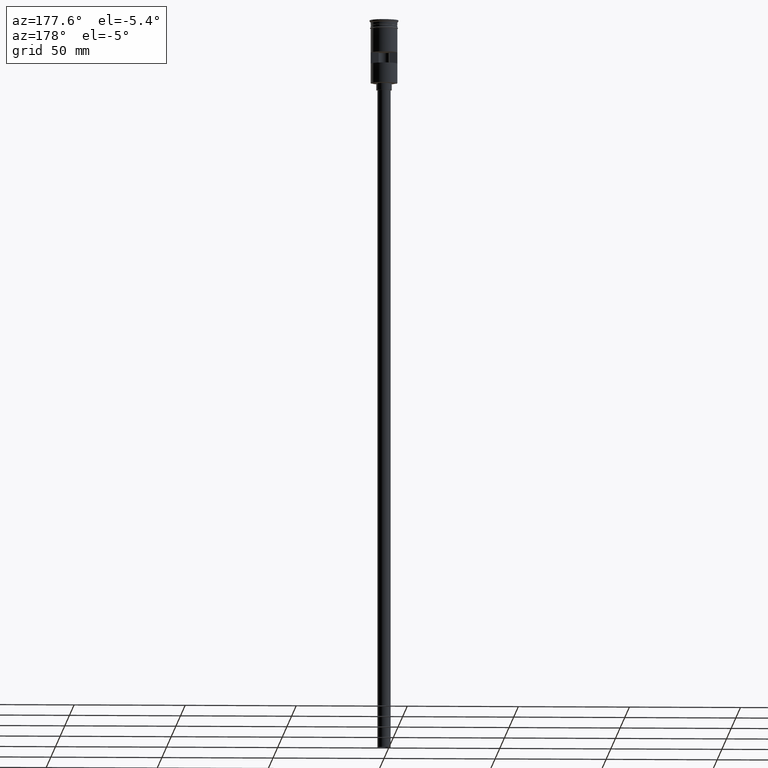
[diagram: clean part render]
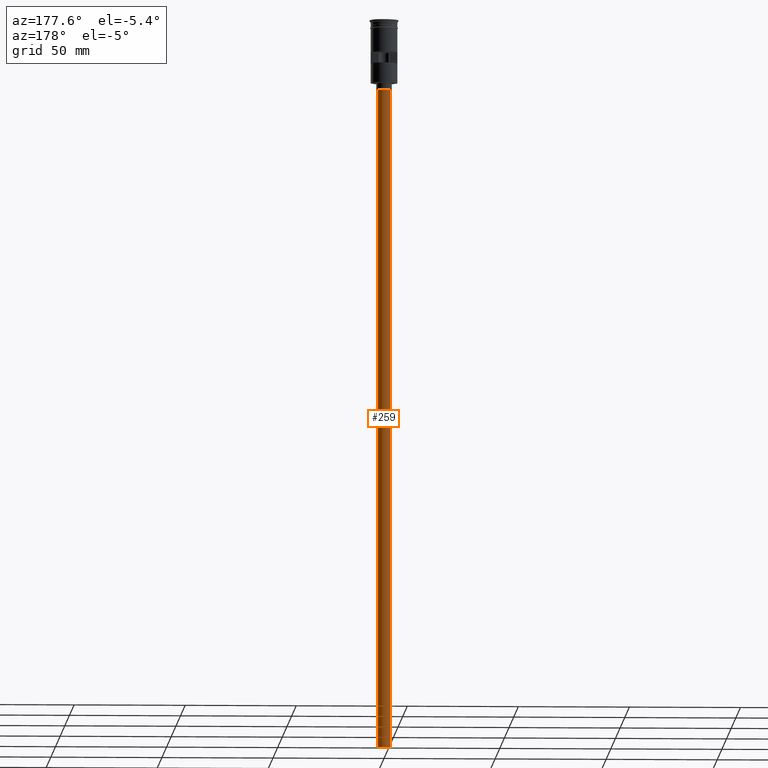
[diagram: same view with one face highlighted and labeled with its STEP entity id]
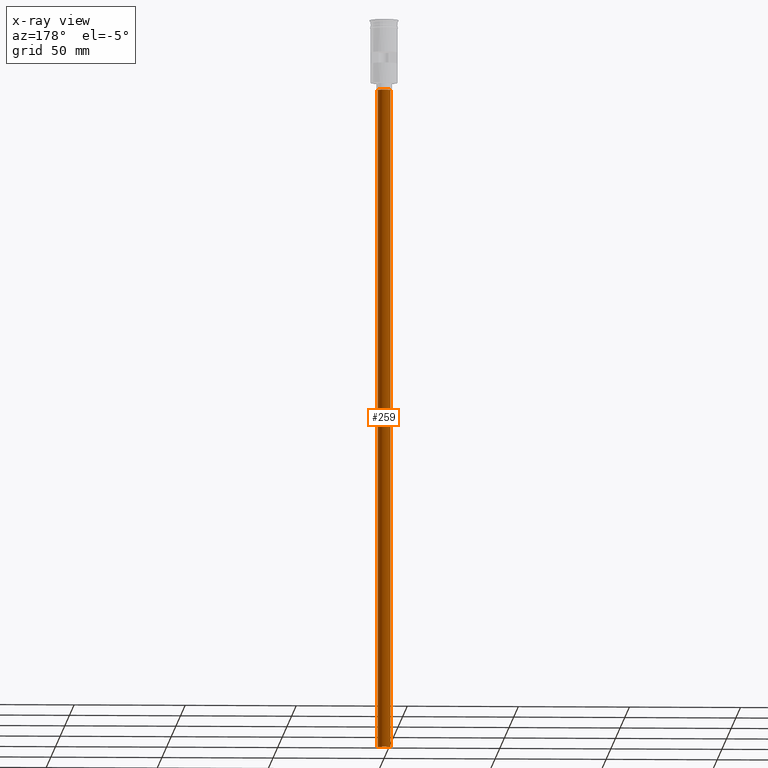
[diagram: x-ray of the same camera — body ghosted, the highlighted face saturated]
A machine part, auxiliary view. The second image highlights one B-rep face of the part: STEP entity #259.
The next image is the same camera in x-ray: the body ghosted, the highlighted face saturated — about 0% of this face is hidden behind the body in this view.
In plain terms, the highlighted cylindrical surface (edge-blend (fillet) strip) has radius 3 mm, axis along (-0, -0, 1).
Its self-contained STEP definition (entity closure, byte-faithful):
#22 = DIRECTION ( 'NONE',  ( 1.000000000000000000, 0.000000000000000000, 0.000000000000000000 ) ) ;
#27 = LINE ( 'NONE', #396, #632 ) ;
#63 = CARTESIAN_POINT ( 'NONE',  ( 0.000000000000000000, 0.000000000000000000, -328.5000000000000000 ) ) ;
#170 = CARTESIAN_POINT ( 'NONE',  ( 0.000000000000000000, 0.000000000000000000, -328.5000000000000000 ) ) ;
#190 = VERTEX_POINT ( 'NONE', #743 ) ;
#191 = DIRECTION ( 'NONE',  ( 0.000000000000000000, 0.000000000000000000, -1.000000000000000000 ) ) ;
#218 = VERTEX_POINT ( 'NONE', #860 ) ;
#259 = ADVANCED_FACE ( 'NONE', ( #277 ), #304, .T. ) ;
#277 = FACE_OUTER_BOUND ( 'NONE', #1169, .T. ) ;
#304 = CYLINDRICAL_SURFACE ( 'NONE', #1219, 3.000000000000000444 ) ;
#367 = AXIS2_PLACEMENT_3D ( 'NONE', #1266, #1130, #418 ) ;
#380 = EDGE_CURVE ( 'NONE', #190, #218, #1432, .T. ) ;
#396 = CARTESIAN_POINT ( 'NONE',  ( -3.000000000000000444, 3.673940397442060361E-16, -328.5000000000000000 ) ) ;
#418 = DIRECTION ( 'NONE',  ( -1.000000000000000000, 0.000000000000000000, 0.000000000000000000 ) ) ;
#442 = EDGE_CURVE ( 'NONE', #659, #1314, #511, .T. ) ;
#511 = CIRCLE ( 'NONE', #692, 3.000000000000000444 ) ;
#601 = ORIENTED_EDGE ( 'NONE', *, *, #968, .T. ) ;
#632 = VECTOR ( 'NONE', #1253, 1000.000000000000000 ) ;
#659 = VERTEX_POINT ( 'NONE', #1033 ) ;
#692 = AXIS2_PLACEMENT_3D ( 'NONE', #63, #191, #783 ) ;
#743 = CARTESIAN_POINT ( 'NONE',  ( -3.000000000000000444, 3.673940397442060361E-16, -31.50000000000000000 ) ) ;
#783 = DIRECTION ( 'NONE',  ( -1.000000000000000000, 0.000000000000000000, 0.000000000000000000 ) ) ;
#790 = EDGE_CURVE ( 'NONE', #1314, #218, #796, .T. ) ;
#796 = LINE ( 'NONE', #938, #1490 ) ;
#860 = CARTESIAN_POINT ( 'NONE',  ( 3.000000000000000444, 0.000000000000000000, -31.50000000000000000 ) ) ;
#876 = ORIENTED_EDGE ( 'NONE', *, *, #790, .F. ) ;
#938 = CARTESIAN_POINT ( 'NONE',  ( 3.000000000000000444, 0.000000000000000000, -328.5000000000000000 ) ) ;
#968 = EDGE_CURVE ( 'NONE', #659, #190, #27, .T. ) ;
#1033 = CARTESIAN_POINT ( 'NONE',  ( -3.000000000000000444, 3.673940397442060361E-16, -328.5000000000000000 ) ) ;
#1042 = ORIENTED_EDGE ( 'NONE', *, *, #380, .T. ) ;
#1088 = DIRECTION ( 'NONE',  ( -0.000000000000000000, -0.000000000000000000, 1.000000000000000000 ) ) ;
#1130 = DIRECTION ( 'NONE',  ( 0.000000000000000000, 0.000000000000000000, -1.000000000000000000 ) ) ;
#1169 = EDGE_LOOP ( 'NONE', ( #1343, #601, #1042, #876 ) ) ;
#1219 = AXIS2_PLACEMENT_3D ( 'NONE', #170, #1517, #22 ) ;
#1253 = DIRECTION ( 'NONE',  ( -0.000000000000000000, -0.000000000000000000, 1.000000000000000000 ) ) ;
#1266 = CARTESIAN_POINT ( 'NONE',  ( 0.000000000000000000, 0.000000000000000000, -31.50000000000000000 ) ) ;
#1314 = VERTEX_POINT ( 'NONE', #1440 ) ;
#1343 = ORIENTED_EDGE ( 'NONE', *, *, #442, .F. ) ;
#1432 = CIRCLE ( 'NONE', #367, 3.000000000000000444 ) ;
#1440 = CARTESIAN_POINT ( 'NONE',  ( 3.000000000000000444, 0.000000000000000000, -328.5000000000000000 ) ) ;
#1490 = VECTOR ( 'NONE', #1088, 1000.000000000000000 ) ;
#1517 = DIRECTION ( 'NONE',  ( -0.000000000000000000, -0.000000000000000000, 1.000000000000000000 ) ) ;